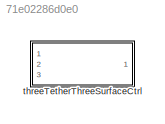
MODEL slx_71e02286d0e0
KIND library
CONFIG AbsTol = auto
CONFIG EnableMultiTasking = off
CONFIG FixedStep = auto
CONFIG MaxStep = auto
CONFIG MinStep = auto
CONFIG RelTol = 1e-3
CONFIG SampleTimeConstraint = Unconstrained
CONFIG Solver = VariableStepAuto
CONFIG SolverName = VariableStepAuto
CONFIG StartTime = 0.0
CONFIG StopTime = 10.0
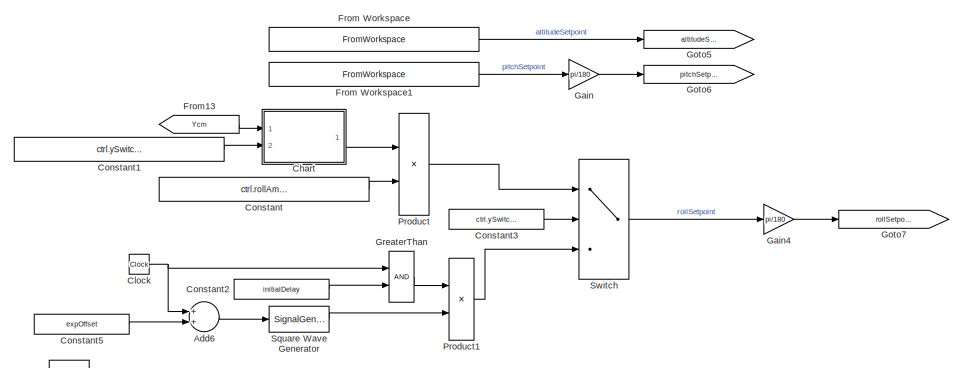
[diagram: threeTetherThreeSurfaceCtrl - part 1/2, top center region]
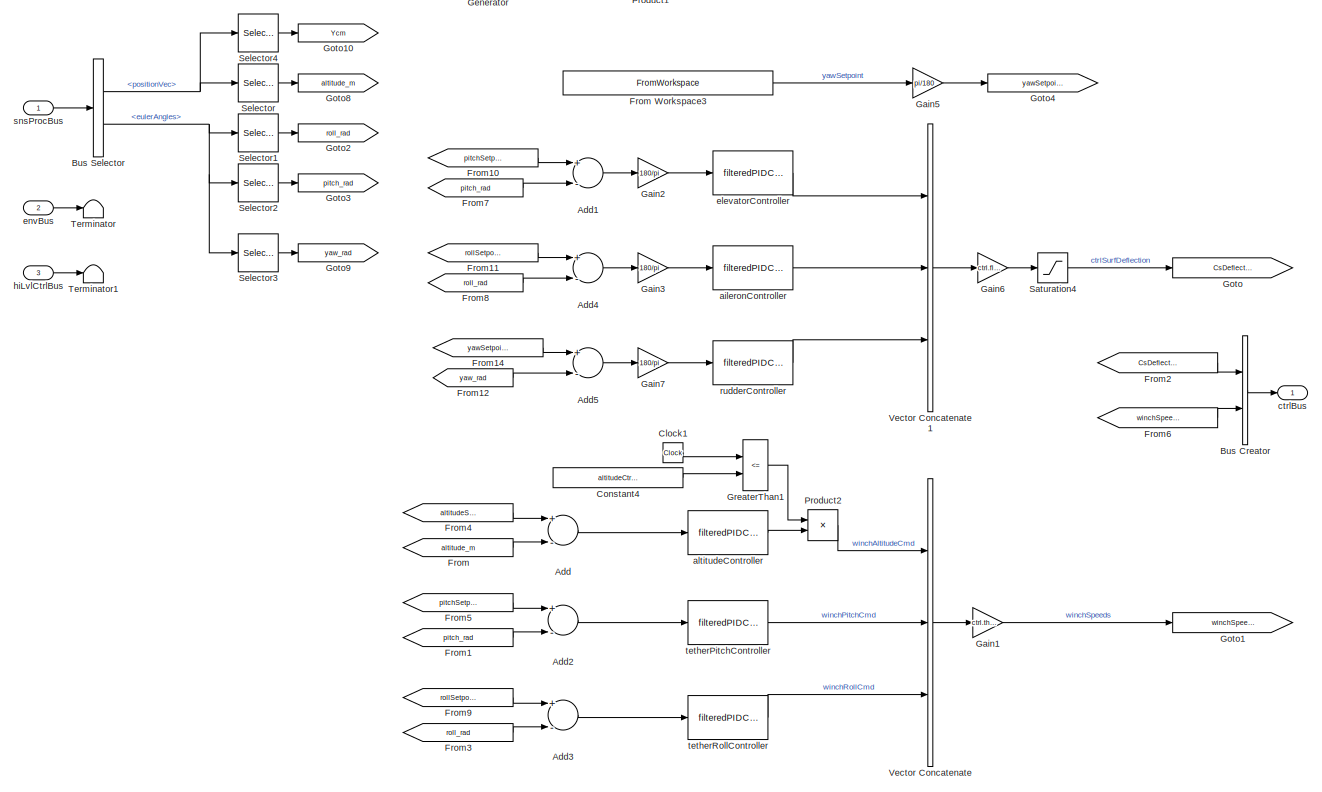
[diagram: threeTetherThreeSurfaceCtrl - part 2/2, full width, middle band]
BLOCK [SubSystem] threeTetherThreeSurfaceCtrl
  InitFcn = initializeBussesFromBlock(gcb)
  LoadFcn = initializeBussesFromBlock(gcb)
  Ports = [3, 1]
  RequestExecContextInheritance = off
  StartFcn = initializeBussesFromBlock(gcb)
  VariantControl = VSS_controller_threeTetherThreeSurfaceCtrl
BLOCK [Sum] threeTetherThreeSurfaceCtrl/Add
  InputSameDT = off
  Inputs = +-
  OutDataTypeStr = Inherit: Inherit via internal rule
  Ports = [2, 1]
  SaturateOnIntegerOverflow = off
BLOCK [Sum] threeTetherThreeSurfaceCtrl/Add1
  InputSameDT = off
  Inputs = +-
  OutDataTypeStr = Inherit: Inherit via internal rule
  Ports = [2, 1]
  SaturateOnIntegerOverflow = off
BLOCK [Sum] threeTetherThreeSurfaceCtrl/Add2
  InputSameDT = off
  Inputs = +-
  OutDataTypeStr = Inherit: Inherit via internal rule
  Ports = [2, 1]
  SaturateOnIntegerOverflow = off
BLOCK [Sum] threeTetherThreeSurfaceCtrl/Add3
  InputSameDT = off
  Inputs = +-
  OutDataTypeStr = Inherit: Inherit via internal rule
  Ports = [2, 1]
  SaturateOnIntegerOverflow = off
BLOCK [Sum] threeTetherThreeSurfaceCtrl/Add4
  InputSameDT = off
  Inputs = +-
  OutDataTypeStr = Inherit: Inherit via internal rule
  Ports = [2, 1]
  SaturateOnIntegerOverflow = off
BLOCK [Sum] threeTetherThreeSurfaceCtrl/Add5
  InputSameDT = off
  Inputs = +-
  OutDataTypeStr = Inherit: Inherit via internal rule
  Ports = [2, 1]
  SaturateOnIntegerOverflow = off
BLOCK [Sum] threeTetherThreeSurfaceCtrl/Add6
  InputSameDT = off
  OutDataTypeStr = Inherit: Inherit via internal rule
  Ports = [2, 1]
  SaturateOnIntegerOverflow = off
BLOCK [BusCreator] threeTetherThreeSurfaceCtrl/Bus Creator
  DisplayOption = bar
  InheritFromInputs = on
  Inputs = 2
  OutDataTypeStr = Bus: fltCtrlBus
  Ports = [2, 1]
BLOCK [BusSelector] threeTetherThreeSurfaceCtrl/Bus Selector
  OutputAsBus = off
  OutputSignals = positionVec,eulerAngles
  Ports = [1, 2]
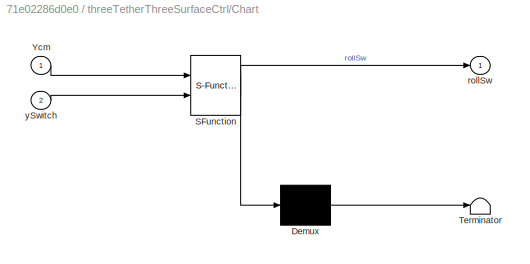
BLOCK [SubSystem] threeTetherThreeSurfaceCtrl/Chart
  ErrorFcn = Stateflow.Translate.translate
  PermitHierarchicalResolution = ExplicitOnly
  Ports = [2, 1]
  RequestExecContextInheritance = off
  SFBlockType = Chart
  TreatAsAtomicUnit = on
BLOCK [Demux] threeTetherThreeSurfaceCtrl/Chart/ Demux 
  Outputs = 1
  Ports = [1, 1]
BLOCK [S-Function] threeTetherThreeSurfaceCtrl/Chart/ SFunction 
  EnableBusSupport = off
  FunctionName = sf_sfun
  PortCounts = [2 2]
  Ports = [2, 2]
  SFcnIsStateOwnerBlock = off
  SFunctionDeploymentMode = off
  Tag = Stateflow S-Function threeTetherThreeSurfaceCtrl_cl 3
BLOCK [Terminator] threeTetherThreeSurfaceCtrl/Chart/ Terminator 
BLOCK [Inport] threeTetherThreeSurfaceCtrl/Chart/Ycm
  IconDisplay = Port number
BLOCK [Outport] threeTetherThreeSurfaceCtrl/Chart/rollSw
  IconDisplay = Port number
BLOCK [Inport] threeTetherThreeSurfaceCtrl/Chart/ySwitch
  IconDisplay = Port number
  Port = 2
BLOCK [Clock] threeTetherThreeSurfaceCtrl/Clock
BLOCK [Clock] threeTetherThreeSurfaceCtrl/Clock1
BLOCK [Constant] threeTetherThreeSurfaceCtrl/Constant
  Value = ctrl.rollAmp.Value
BLOCK [Constant] threeTetherThreeSurfaceCtrl/Constant1
  Value = ctrl.ySwitch.Value
BLOCK [Constant] threeTetherThreeSurfaceCtrl/Constant2
  Value = initialDelay
BLOCK [Constant] threeTetherThreeSurfaceCtrl/Constant3
  Value = ctrl.ySwitch.Value
BLOCK [Constant] threeTetherThreeSurfaceCtrl/Constant4
  Value = altitudeCtrlShutOffDelay
BLOCK [Constant] threeTetherThreeSurfaceCtrl/Constant5
  Value = expOffset
BLOCK [From] threeTetherThreeSurfaceCtrl/From
  GotoTag = altitude_m
BLOCK [FromWorkspace] threeTetherThreeSurfaceCtrl/From Workspace
  SampleTime = 0
  VariableName = ctrl.altiSP.Value
  ZeroCross = on
BLOCK [FromWorkspace] threeTetherThreeSurfaceCtrl/From Workspace1
  SampleTime = 0
  VariableName = ctrl.pitchSP.Value
  ZeroCross = on
BLOCK [FromWorkspace] threeTetherThreeSurfaceCtrl/From Workspace3
  SampleTime = 0
  VariableName = ctrl.yawSP.Value
  ZeroCross = on
BLOCK [From] threeTetherThreeSurfaceCtrl/From1
  GotoTag = pitch_rad
BLOCK [From] threeTetherThreeSurfaceCtrl/From10
  GotoTag = pitchSetpoint_rad
BLOCK [From] threeTetherThreeSurfaceCtrl/From11
  GotoTag = rollSetpoint_rad
BLOCK [From] threeTetherThreeSurfaceCtrl/From12
  GotoTag = yaw_rad
BLOCK [From] threeTetherThreeSurfaceCtrl/From13
  GotoTag = Ycm
BLOCK [From] threeTetherThreeSurfaceCtrl/From14
  GotoTag = yawSetpoint_rad
BLOCK [From] threeTetherThreeSurfaceCtrl/From2
  GotoTag = CsDeflectn_deg
BLOCK [From] threeTetherThreeSurfaceCtrl/From3
  GotoTag = roll_rad
BLOCK [From] threeTetherThreeSurfaceCtrl/From4
  GotoTag = altitudeSetpoint_m
BLOCK [From] threeTetherThreeSurfaceCtrl/From5
  GotoTag = pitchSetpoint_rad
BLOCK [From] threeTetherThreeSurfaceCtrl/From6
  GotoTag = winchSpeeds_mPs
BLOCK [From] threeTetherThreeSurfaceCtrl/From7
  GotoTag = pitch_rad
BLOCK [From] threeTetherThreeSurfaceCtrl/From8
  GotoTag = roll_rad
BLOCK [From] threeTetherThreeSurfaceCtrl/From9
  GotoTag = rollSetpoint_rad
BLOCK [Gain] threeTetherThreeSurfaceCtrl/Gain
  Gain = pi/180
  OutDataTypeStr = Inherit: Inherit via internal rule
  ParamDataTypeStr = Inherit: Inherit via internal rule
  SaturateOnIntegerOverflow = off
BLOCK [Gain] threeTetherThreeSurfaceCtrl/Gain1
  Gain = ctrl.thrAllocationMat.Value
  Multiplication = Matrix(K*u)
  OutDataTypeStr = Inherit: Inherit via internal rule
  ParamDataTypeStr = Inherit: Inherit via internal rule
  SaturateOnIntegerOverflow = off
BLOCK [Gain] threeTetherThreeSurfaceCtrl/Gain2
  Gain = 180/pi
  OutDataTypeStr = Inherit: Inherit via internal rule
  ParamDataTypeStr = Inherit: Inherit via internal rule
  SaturateOnIntegerOverflow = off
BLOCK [Gain] threeTetherThreeSurfaceCtrl/Gain3
  Gain = 180/pi
  OutDataTypeStr = Inherit: Inherit via internal rule
  ParamDataTypeStr = Inherit: Inherit via internal rule
  SaturateOnIntegerOverflow = off
BLOCK [Gain] threeTetherThreeSurfaceCtrl/Gain4
  Gain = pi/180
  OutDataTypeStr = Inherit: Inherit via internal rule
  ParamDataTypeStr = Inherit: Inherit via internal rule
  SaturateOnIntegerOverflow = off
BLOCK [Gain] threeTetherThreeSurfaceCtrl/Gain5
  Gain = pi/180
  OutDataTypeStr = Inherit: Inherit via internal rule
  ParamDataTypeStr = Inherit: Inherit via internal rule
  SaturateOnIntegerOverflow = off
BLOCK [Gain] threeTetherThreeSurfaceCtrl/Gain6
  Gain = ctrl.fltCtrlSurfAllocationMat.Value
  Multiplication = Matrix(K*u)
  OutDataTypeStr = Inherit: Inherit via internal rule
  ParamDataTypeStr = Inherit: Inherit via internal rule
  SaturateOnIntegerOverflow = off
BLOCK [Gain] threeTetherThreeSurfaceCtrl/Gain7
  Gain = 180/pi
  OutDataTypeStr = Inherit: Inherit via internal rule
  ParamDataTypeStr = Inherit: Inherit via internal rule
  SaturateOnIntegerOverflow = off
BLOCK [Goto] threeTetherThreeSurfaceCtrl/Goto
  GotoTag = CsDeflectn_deg
BLOCK [Goto] threeTetherThreeSurfaceCtrl/Goto1
  GotoTag = winchSpeeds_mPs
BLOCK [Goto] threeTetherThreeSurfaceCtrl/Goto10
  GotoTag = Ycm
BLOCK [Goto] threeTetherThreeSurfaceCtrl/Goto2
  GotoTag = roll_rad
BLOCK [Goto] threeTetherThreeSurfaceCtrl/Goto3
  GotoTag = pitch_rad
BLOCK [Goto] threeTetherThreeSurfaceCtrl/Goto4
  GotoTag = yawSetpoint_rad
BLOCK [Goto] threeTetherThreeSurfaceCtrl/Goto5
  GotoTag = altitudeSetpoint_m
BLOCK [Goto] threeTetherThreeSurfaceCtrl/Goto6
  GotoTag = pitchSetpoint_rad
BLOCK [Goto] threeTetherThreeSurfaceCtrl/Goto7
  GotoTag = rollSetpoint_rad
BLOCK [Goto] threeTetherThreeSurfaceCtrl/Goto8
  GotoTag = altitude_m
BLOCK [Goto] threeTetherThreeSurfaceCtrl/Goto9
  GotoTag = yaw_rad
BLOCK [RelationalOperator] threeTetherThreeSurfaceCtrl/GreaterThan
  InputSameDT = off
  OutDataTypeStr = boolean
  Ports = [2, 1]
  RndMeth = Simplest
BLOCK [RelationalOperator] threeTetherThreeSurfaceCtrl/GreaterThan1
  InputSameDT = off
  Operator = <=
  OutDataTypeStr = boolean
  Ports = [2, 1]
  RndMeth = Simplest
BLOCK [Product] threeTetherThreeSurfaceCtrl/Product
  InputSameDT = off
  OutDataTypeStr = Inherit: Inherit via internal rule
  Ports = [2, 1]
  RndMeth = Floor
  SaturateOnIntegerOverflow = off
BLOCK [Product] threeTetherThreeSurfaceCtrl/Product1
  InputSameDT = off
  OutDataTypeStr = Inherit: Inherit via internal rule
  Ports = [2, 1]
  RndMeth = Floor
  SaturateOnIntegerOverflow = off
BLOCK [Product] threeTetherThreeSurfaceCtrl/Product2
  InputSameDT = off
  OutDataTypeStr = Inherit: Inherit via internal rule
  Ports = [2, 1]
  RndMeth = Floor
  SaturateOnIntegerOverflow = off
BLOCK [Saturate] threeTetherThreeSurfaceCtrl/Saturation4
  InputPortMap = u0
  LowerLimit = ctrl.outputSat.lowerLimit.Value
  Ports = [1, 1]
  UpperLimit = ctrl.outputSat.upperLimit.Value
BLOCK [Selector] threeTetherThreeSurfaceCtrl/Selector
  IndexOptions = Index vector (dialog)
  Indices = 3
  InputPortWidth = 3
  OutputSizes = 1
  Ports = [1, 1]
BLOCK [Selector] threeTetherThreeSurfaceCtrl/Selector1
  IndexOptions = Index vector (dialog)
  Indices = 1
  InputPortWidth = 3
  OutputSizes = 1
  Ports = [1, 1]
BLOCK [Selector] threeTetherThreeSurfaceCtrl/Selector2
  IndexOptions = Index vector (dialog)
  Indices = 2
  InputPortWidth = 3
  OutputSizes = 1
  Ports = [1, 1]
BLOCK [Selector] threeTetherThreeSurfaceCtrl/Selector3
  IndexOptions = Index vector (dialog)
  Indices = 3
  InputPortWidth = 3
  OutputSizes = 1
  Ports = [1, 1]
BLOCK [Selector] threeTetherThreeSurfaceCtrl/Selector4
  IndexOptions = Index vector (dialog)
  Indices = 2
  InputPortWidth = 3
  OutputSizes = 1
  Ports = [1, 1]
BLOCK [SignalGenerator] threeTetherThreeSurfaceCtrl/Square Wave Generator
  Amplitude = ctrl.rollAmp.Value
  Frequency = 1/ctrl.rollPeriod.Value
  Ports = [1, 1]
  TimeSource = Use external signal
  WaveForm = square
BLOCK [Switch] threeTetherThreeSurfaceCtrl/Switch
  Criteria = u2 ~= 0
  InputSameDT = off
  SaturateOnIntegerOverflow = off
BLOCK [Terminator] threeTetherThreeSurfaceCtrl/Terminator
BLOCK [Terminator] threeTetherThreeSurfaceCtrl/Terminator1
BLOCK [Concatenate] threeTetherThreeSurfaceCtrl/Vector Concatenate
  NumInputs = 3
  Ports = [3, 1]
BLOCK [Concatenate] threeTetherThreeSurfaceCtrl/Vector Concatenate1
  NumInputs = 3
  Ports = [3, 1]
BLOCK [Reference] threeTetherThreeSurfaceCtrl/aileronController  REF=filteredPIDController_ul/filteredPIDController
  Ports = [1, 1]
  SourceBlock = filteredPIDController_ul/filteredPIDController
BLOCK [Reference] threeTetherThreeSurfaceCtrl/altitudeController  REF=filteredPIDController_ul/filteredPIDController
  Ports = [1, 1]
  SourceBlock = filteredPIDController_ul/filteredPIDController
BLOCK [Outport] threeTetherThreeSurfaceCtrl/ctrlBus
  IconDisplay = Port number
  OutDataTypeStr = Bus: fltCtrlBus
BLOCK [Reference] threeTetherThreeSurfaceCtrl/elevatorController  REF=filteredPIDController_ul/filteredPIDController
  Ports = [1, 1]
  SourceBlock = filteredPIDController_ul/filteredPIDController
BLOCK [Inport] threeTetherThreeSurfaceCtrl/envBus
  IconDisplay = Port number
  OutDataTypeStr = Bus: envBus
  Port = 2
BLOCK [Inport] threeTetherThreeSurfaceCtrl/hiLvlCtrlBus
  IconDisplay = Port number
  OutDataTypeStr = Bus: hiLvlCtrlBus
  Port = 3
BLOCK [Reference] threeTetherThreeSurfaceCtrl/rudderController  REF=filteredPIDController_ul/filteredPIDController
  Ports = [1, 1]
  SourceBlock = filteredPIDController_ul/filteredPIDController
BLOCK [Inport] threeTetherThreeSurfaceCtrl/snsProcBus
  IconDisplay = Port number
  OutDataTypeStr = Bus: sensorsProcessingBus
BLOCK [Reference] threeTetherThreeSurfaceCtrl/tetherPitchController  REF=filteredPIDController_ul/filteredPIDController
  Ports = [1, 1]
  SourceBlock = filteredPIDController_ul/filteredPIDController
BLOCK [Reference] threeTetherThreeSurfaceCtrl/tetherRollController  REF=filteredPIDController_ul/filteredPIDController
  Ports = [1, 1]
  SourceBlock = filteredPIDController_ul/filteredPIDController
LINE threeTetherThreeSurfaceCtrl/Add1:1 -> threeTetherThreeSurfaceCtrl/Gain2:1
LINE threeTetherThreeSurfaceCtrl/Add2:1 -> threeTetherThreeSurfaceCtrl/tetherPitchController:1
LINE threeTetherThreeSurfaceCtrl/Add3:1 -> threeTetherThreeSurfaceCtrl/tetherRollController:1
LINE threeTetherThreeSurfaceCtrl/Add4:1 -> threeTetherThreeSurfaceCtrl/Gain3:1
LINE threeTetherThreeSurfaceCtrl/Add5:1 -> threeTetherThreeSurfaceCtrl/Gain7:1
LINE threeTetherThreeSurfaceCtrl/Add6:1 -> threeTetherThreeSurfaceCtrl/Square Wave Generator:1
LINE threeTetherThreeSurfaceCtrl/Add:1 -> threeTetherThreeSurfaceCtrl/altitudeController:1
LINE threeTetherThreeSurfaceCtrl/Bus Creator:1 -> threeTetherThreeSurfaceCtrl/ctrlBus:1
NET threeTetherThreeSurfaceCtrl/Bus Selector:1 -> threeTetherThreeSurfaceCtrl/Selector4:1, threeTetherThreeSurfaceCtrl/Selector:1
NET threeTetherThreeSurfaceCtrl/Bus Selector:2 -> threeTetherThreeSurfaceCtrl/Selector1:1, threeTetherThreeSurfaceCtrl/Selector2:1, threeTetherThreeSurfaceCtrl/Selector3:1
LINE threeTetherThreeSurfaceCtrl/Chart:1 -> threeTetherThreeSurfaceCtrl/Product:1
LINE threeTetherThreeSurfaceCtrl/Clock1:1 -> threeTetherThreeSurfaceCtrl/GreaterThan1:1
NET threeTetherThreeSurfaceCtrl/Clock:1 -> threeTetherThreeSurfaceCtrl/Add6:1, threeTetherThreeSurfaceCtrl/GreaterThan:1
LINE threeTetherThreeSurfaceCtrl/Constant1:1 -> threeTetherThreeSurfaceCtrl/Chart:2
LINE threeTetherThreeSurfaceCtrl/Constant2:1 -> threeTetherThreeSurfaceCtrl/GreaterThan:2
LINE threeTetherThreeSurfaceCtrl/Constant3:1 -> threeTetherThreeSurfaceCtrl/Switch:2
LINE threeTetherThreeSurfaceCtrl/Constant4:1 -> threeTetherThreeSurfaceCtrl/GreaterThan1:2
LINE threeTetherThreeSurfaceCtrl/Constant5:1 -> threeTetherThreeSurfaceCtrl/Add6:2
LINE threeTetherThreeSurfaceCtrl/Constant:1 -> threeTetherThreeSurfaceCtrl/Product:2
LINE threeTetherThreeSurfaceCtrl/From Workspace1:1 -> threeTetherThreeSurfaceCtrl/Gain:1
LINE threeTetherThreeSurfaceCtrl/From Workspace3:1 -> threeTetherThreeSurfaceCtrl/Gain5:1
LINE threeTetherThreeSurfaceCtrl/From Workspace:1 -> threeTetherThreeSurfaceCtrl/Goto5:1
LINE threeTetherThreeSurfaceCtrl/From10:1 -> threeTetherThreeSurfaceCtrl/Add1:1
LINE threeTetherThreeSurfaceCtrl/From11:1 -> threeTetherThreeSurfaceCtrl/Add4:1
LINE threeTetherThreeSurfaceCtrl/From12:1 -> threeTetherThreeSurfaceCtrl/Add5:2
LINE threeTetherThreeSurfaceCtrl/From13:1 -> threeTetherThreeSurfaceCtrl/Chart:1
LINE threeTetherThreeSurfaceCtrl/From14:1 -> threeTetherThreeSurfaceCtrl/Add5:1
LINE threeTetherThreeSurfaceCtrl/From1:1 -> threeTetherThreeSurfaceCtrl/Add2:2
LINE threeTetherThreeSurfaceCtrl/From2:1 -> threeTetherThreeSurfaceCtrl/Bus Creator:1
LINE threeTetherThreeSurfaceCtrl/From3:1 -> threeTetherThreeSurfaceCtrl/Add3:2
LINE threeTetherThreeSurfaceCtrl/From4:1 -> threeTetherThreeSurfaceCtrl/Add:1
LINE threeTetherThreeSurfaceCtrl/From5:1 -> threeTetherThreeSurfaceCtrl/Add2:1
LINE threeTetherThreeSurfaceCtrl/From6:1 -> threeTetherThreeSurfaceCtrl/Bus Creator:2
LINE threeTetherThreeSurfaceCtrl/From7:1 -> threeTetherThreeSurfaceCtrl/Add1:2
LINE threeTetherThreeSurfaceCtrl/From8:1 -> threeTetherThreeSurfaceCtrl/Add4:2
LINE threeTetherThreeSurfaceCtrl/From9:1 -> threeTetherThreeSurfaceCtrl/Add3:1
LINE threeTetherThreeSurfaceCtrl/From:1 -> threeTetherThreeSurfaceCtrl/Add:2
LINE threeTetherThreeSurfaceCtrl/Gain1:1 -> threeTetherThreeSurfaceCtrl/Goto1:1
LINE threeTetherThreeSurfaceCtrl/Gain2:1 -> threeTetherThreeSurfaceCtrl/elevatorController:1
LINE threeTetherThreeSurfaceCtrl/Gain3:1 -> threeTetherThreeSurfaceCtrl/aileronController:1
LINE threeTetherThreeSurfaceCtrl/Gain4:1 -> threeTetherThreeSurfaceCtrl/Goto7:1
LINE threeTetherThreeSurfaceCtrl/Gain5:1 -> threeTetherThreeSurfaceCtrl/Goto4:1
LINE threeTetherThreeSurfaceCtrl/Gain6:1 -> threeTetherThreeSurfaceCtrl/Saturation4:1
LINE threeTetherThreeSurfaceCtrl/Gain7:1 -> threeTetherThreeSurfaceCtrl/rudderController:1
LINE threeTetherThreeSurfaceCtrl/Gain:1 -> threeTetherThreeSurfaceCtrl/Goto6:1
LINE threeTetherThreeSurfaceCtrl/GreaterThan1:1 -> threeTetherThreeSurfaceCtrl/Product2:1
LINE threeTetherThreeSurfaceCtrl/GreaterThan:1 -> threeTetherThreeSurfaceCtrl/Product1:1
LINE threeTetherThreeSurfaceCtrl/Product1:1 -> threeTetherThreeSurfaceCtrl/Switch:3
LINE threeTetherThreeSurfaceCtrl/Product2:1 -> threeTetherThreeSurfaceCtrl/Vector Concatenate:1
LINE threeTetherThreeSurfaceCtrl/Product:1 -> threeTetherThreeSurfaceCtrl/Switch:1
LINE threeTetherThreeSurfaceCtrl/Saturation4:1 -> threeTetherThreeSurfaceCtrl/Goto:1
LINE threeTetherThreeSurfaceCtrl/Selector1:1 -> threeTetherThreeSurfaceCtrl/Goto2:1
LINE threeTetherThreeSurfaceCtrl/Selector2:1 -> threeTetherThreeSurfaceCtrl/Goto3:1
LINE threeTetherThreeSurfaceCtrl/Selector3:1 -> threeTetherThreeSurfaceCtrl/Goto9:1
LINE threeTetherThreeSurfaceCtrl/Selector4:1 -> threeTetherThreeSurfaceCtrl/Goto10:1
LINE threeTetherThreeSurfaceCtrl/Selector:1 -> threeTetherThreeSurfaceCtrl/Goto8:1
LINE threeTetherThreeSurfaceCtrl/Square Wave Generator:1 -> threeTetherThreeSurfaceCtrl/Product1:2
LINE threeTetherThreeSurfaceCtrl/Switch:1 -> threeTetherThreeSurfaceCtrl/Gain4:1
LINE threeTetherThreeSurfaceCtrl/Vector Concatenate1:1 -> threeTetherThreeSurfaceCtrl/Gain6:1
LINE threeTetherThreeSurfaceCtrl/Vector Concatenate:1 -> threeTetherThreeSurfaceCtrl/Gain1:1
LINE threeTetherThreeSurfaceCtrl/aileronController:1 -> threeTetherThreeSurfaceCtrl/Vector Concatenate1:2
LINE threeTetherThreeSurfaceCtrl/altitudeController:1 -> threeTetherThreeSurfaceCtrl/Product2:2
LINE threeTetherThreeSurfaceCtrl/elevatorController:1 -> threeTetherThreeSurfaceCtrl/Vector Concatenate1:1
LINE threeTetherThreeSurfaceCtrl/envBus:1 -> threeTetherThreeSurfaceCtrl/Terminator:1
LINE threeTetherThreeSurfaceCtrl/hiLvlCtrlBus:1 -> threeTetherThreeSurfaceCtrl/Terminator1:1
LINE threeTetherThreeSurfaceCtrl/rudderController:1 -> threeTetherThreeSurfaceCtrl/Vector Concatenate1:3
LINE threeTetherThreeSurfaceCtrl/snsProcBus:1 -> threeTetherThreeSurfaceCtrl/Bus Selector:1
LINE threeTetherThreeSurfaceCtrl/tetherPitchController:1 -> threeTetherThreeSurfaceCtrl/Vector Concatenate:2
LINE threeTetherThreeSurfaceCtrl/tetherRollController:1 -> threeTetherThreeSurfaceCtrl/Vector Concatenate:3
note: NET lines group one-source signal fan-out (src -> all destinations, sorted); 1:1 wires keep LINE
CHART threeTetherThreeSurfaceCtrl/Chart states=2 transitions=3
  STATE_LABEL 'PositiveRoll\nentry:\nrollSw = 1;'
  STATE_LABEL 'NegativeRoll\nentry:\nrollSw = -1;'
